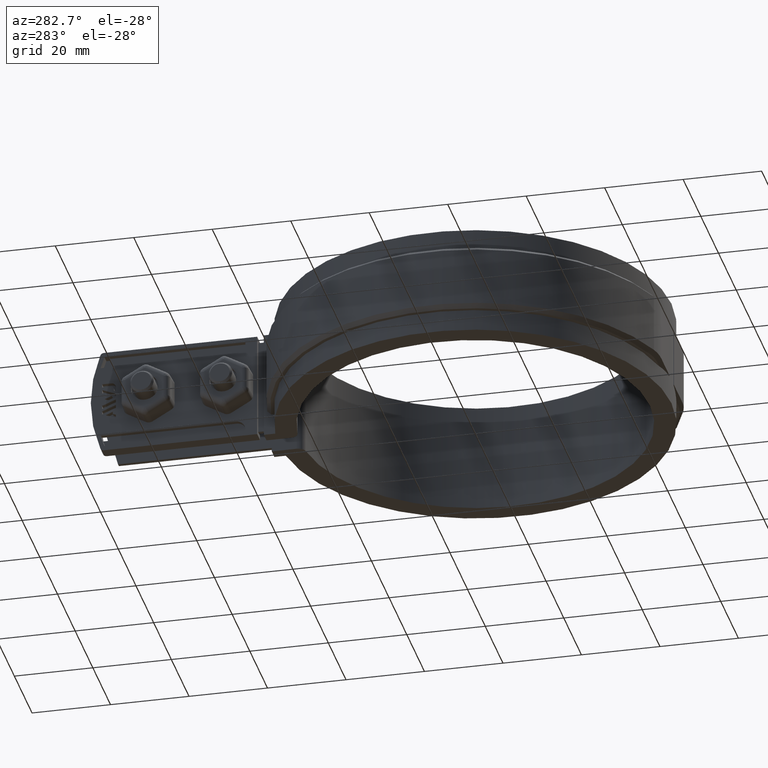
[diagram: clean part render]
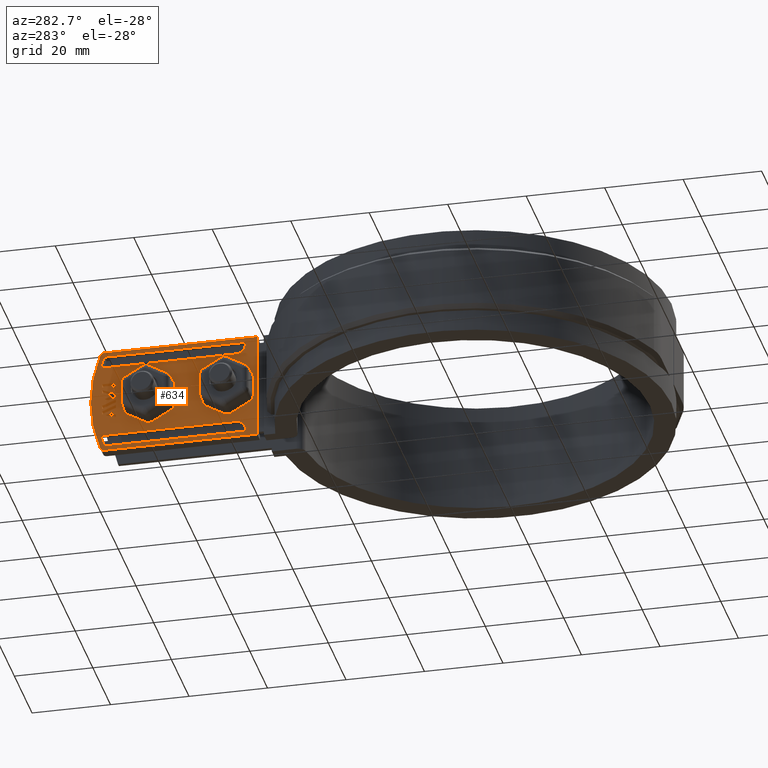
[diagram: same view with one face highlighted and labeled with its STEP entity id]
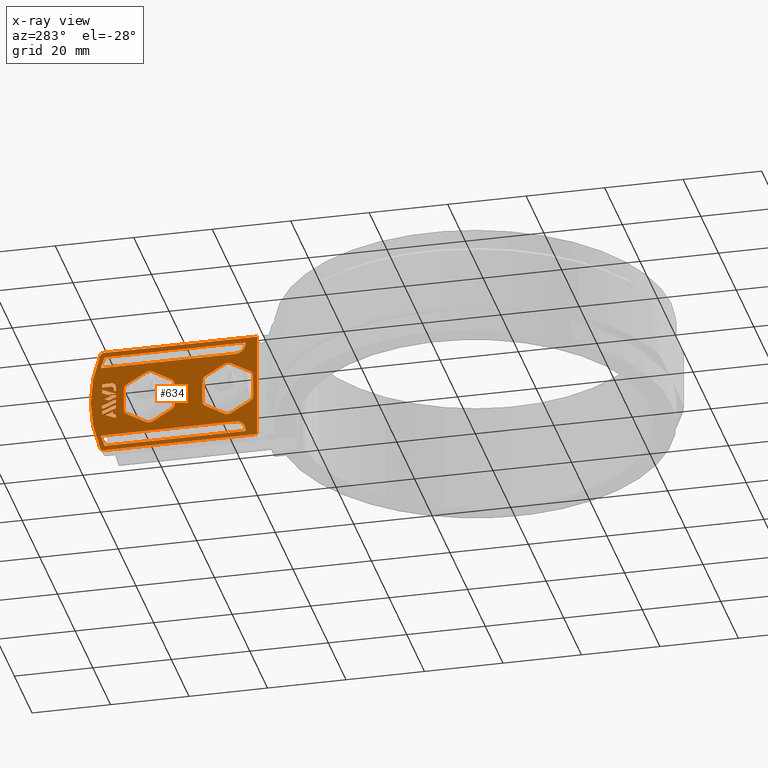
[diagram: x-ray of the same camera — body ghosted, the highlighted face saturated]
A machine part, auxiliary view. The second image highlights one B-rep face of the part: STEP entity #634.
The next image is the same camera in x-ray: the body ghosted, the highlighted face saturated — about 0% of this face is hidden behind the body in this view.
In plain terms, the highlighted planar face has unit normal (-1, 0, -0).
Its self-contained STEP definition (entity closure, byte-faithful):
#634 = ADVANCED_FACE( '', ( #1206, #1207, #1208, #1209, #1210, #1211, #1212, #1213, #1214, #1215 ), #1216, .T. );
#1206 = FACE_BOUND( '', #2577, .T. );
#1207 = FACE_BOUND( '', #2578, .T. );
#1208 = FACE_BOUND( '', #2579, .T. );
#1209 = FACE_BOUND( '', #2580, .T. );
#1210 = FACE_BOUND( '', #2581, .T. );
#1211 = FACE_OUTER_BOUND( '', #2582, .T. );
#1212 = FACE_BOUND( '', #2583, .T. );
#1213 = FACE_BOUND( '', #2584, .T. );
#1214 = FACE_BOUND( '', #2585, .T. );
#1215 = FACE_BOUND( '', #2586, .T. );
#1216 = PLANE( '', #2587 );
#2577 = EDGE_LOOP( '', ( #5952, #5953, #5954, #5955, #5956 ) );
#2578 = EDGE_LOOP( '', ( #5957, #5958, #5959, #5960 ) );
#2579 = EDGE_LOOP( '', ( #5961, #5962, #5963, #5964, #5965 ) );
#2580 = EDGE_LOOP( '', ( #5966, #5967, #5968, #5969, #5970, #5971, #5972, #5973, #5974, #5975, #5976, #5977 ) );
#2581 = EDGE_LOOP( '', ( #5978, #5979, #5980, #5981, #5982, #5983, #5984, #5985, #5986, #5987, #5988, #5989 ) );
#2582 = EDGE_LOOP( '', ( #5990, #5991, #5992, #5993, #5994, #5995 ) );
#2583 = EDGE_LOOP( '', ( #5996, #5997, #5998, #5999, #6000 ) );
#2584 = EDGE_LOOP( '', ( #6001, #6002, #6003, #6004, #6005, #6006, #6007, #6008, #6009, #6010, #6011, #6012, #6013, #6014, #6015, #6016, #6017, #6018, #6019, #6020, #6021, #6022, #6023, #6024, #6025, #6026, #6027, #6028, #6029, #6030, #6031, #6032, #6033, #6034, #6035, #6036, #6037, #6038, #6039, #6040 ) );
#2585 = EDGE_LOOP( '', ( #6041, #6042, #6043, #6044, #6045, #6046, #6047 ) );
#2586 = EDGE_LOOP( '', ( #6048, #6049, #6050, #6051 ) );
#2587 = AXIS2_PLACEMENT_3D( '', #6052, #6053, #6054 );
#5952 = ORIENTED_EDGE( '', *, *, #8037, .T. );
#5953 = ORIENTED_EDGE( '', *, *, #8038, .T. );
#5954 = ORIENTED_EDGE( '', *, *, #8039, .T. );
#5955 = ORIENTED_EDGE( '', *, *, #8040, .T. );
#5956 = ORIENTED_EDGE( '', *, *, #8041, .T. );
#5957 = ORIENTED_EDGE( '', *, *, #8042, .T. );
#5958 = ORIENTED_EDGE( '', *, *, #8043, .T. );
#5959 = ORIENTED_EDGE( '', *, *, #8044, .T. );
#5960 = ORIENTED_EDGE( '', *, *, #8045, .T. );
#5961 = ORIENTED_EDGE( '', *, *, #8046, .T. );
#5962 = ORIENTED_EDGE( '', *, *, #8047, .F. );
#5963 = ORIENTED_EDGE( '', *, *, #8048, .T. );
#5964 = ORIENTED_EDGE( '', *, *, #8049, .T. );
#5965 = ORIENTED_EDGE( '', *, *, #8050, .T. );
#5966 = ORIENTED_EDGE( '', *, *, #8051, .F. );
#5967 = ORIENTED_EDGE( '', *, *, #8052, .F. );
#5968 = ORIENTED_EDGE( '', *, *, #8053, .F. );
#5969 = ORIENTED_EDGE( '', *, *, #8054, .F. );
#5970 = ORIENTED_EDGE( '', *, *, #8055, .F. );
#5971 = ORIENTED_EDGE( '', *, *, #8056, .F. );
#5972 = ORIENTED_EDGE( '', *, *, #8057, .F. );
#5973 = ORIENTED_EDGE( '', *, *, #8058, .F. );
#5974 = ORIENTED_EDGE( '', *, *, #8059, .F. );
#5975 = ORIENTED_EDGE( '', *, *, #8060, .F. );
#5976 = ORIENTED_EDGE( '', *, *, #8061, .F. );
#5977 = ORIENTED_EDGE( '', *, *, #8062, .F. );
#5978 = ORIENTED_EDGE( '', *, *, #8063, .F. );
#5979 = ORIENTED_EDGE( '', *, *, #8064, .F. );
#5980 = ORIENTED_EDGE( '', *, *, #8065, .F. );
#5981 = ORIENTED_EDGE( '', *, *, #8066, .F. );
#5982 = ORIENTED_EDGE( '', *, *, #8067, .F. );
#5983 = ORIENTED_EDGE( '', *, *, #8068, .F. );
#5984 = ORIENTED_EDGE( '', *, *, #8069, .F. );
#5985 = ORIENTED_EDGE( '', *, *, #8070, .F. );
#5986 = ORIENTED_EDGE( '', *, *, #8071, .F. );
#5987 = ORIENTED_EDGE( '', *, *, #8072, .F. );
#5988 = ORIENTED_EDGE( '', *, *, #8073, .F. );
#5989 = ORIENTED_EDGE( '', *, *, #8074, .F. );
#5990 = ORIENTED_EDGE( '', *, *, #8075, .T. );
#5991 = ORIENTED_EDGE( '', *, *, #8076, .T. );
#5992 = ORIENTED_EDGE( '', *, *, #8077, .T. );
#5993 = ORIENTED_EDGE( '', *, *, #8078, .T. );
#5994 = ORIENTED_EDGE( '', *, *, #8079, .T. );
#5995 = ORIENTED_EDGE( '', *, *, #8080, .T. );
#5996 = ORIENTED_EDGE( '', *, *, #8081, .T. );
#5997 = ORIENTED_EDGE( '', *, *, #8082, .T. );
#5998 = ORIENTED_EDGE( '', *, *, #8083, .T. );
#5999 = ORIENTED_EDGE( '', *, *, #8084, .T. );
#6000 = ORIENTED_EDGE( '', *, *, #8085, .F. );
#6001 = ORIENTED_EDGE( '', *, *, #8086, .T. );
#6002 = ORIENTED_EDGE( '', *, *, #8087, .T. );
#6003 = ORIENTED_EDGE( '', *, *, #8088, .T. );
#6004 = ORIENTED_EDGE( '', *, *, #8089, .T. );
#6005 = ORIENTED_EDGE( '', *, *, #8090, .T. );
#6006 = ORIENTED_EDGE( '', *, *, #8091, .T. );
#6007 = ORIENTED_EDGE( '', *, *, #8092, .T. );
#6008 = ORIENTED_EDGE( '', *, *, #8093, .T. );
#6009 = ORIENTED_EDGE( '', *, *, #8094, .T. );
#6010 = ORIENTED_EDGE( '', *, *, #8095, .T. );
#6011 = ORIENTED_EDGE( '', *, *, #8096, .T. );
#6012 = ORIENTED_EDGE( '', *, *, #8097, .T. );
#6013 = ORIENTED_EDGE( '', *, *, #8098, .T. );
#6014 = ORIENTED_EDGE( '', *, *, #8099, .T. );
#6015 = ORIENTED_EDGE( '', *, *, #8100, .T. );
#6016 = ORIENTED_EDGE( '', *, *, #8101, .T. );
#6017 = ORIENTED_EDGE( '', *, *, #8102, .T. );
#6018 = ORIENTED_EDGE( '', *, *, #8103, .T. );
#6019 = ORIENTED_EDGE( '', *, *, #8104, .T. );
#6020 = ORIENTED_EDGE( '', *, *, #8105, .T. );
#6021 = ORIENTED_EDGE( '', *, *, #8106, .T. );
#6022 = ORIENTED_EDGE( '', *, *, #8107, .T. );
#6023 = ORIENTED_EDGE( '', *, *, #8108, .T. );
#6024 = ORIENTED_EDGE( '', *, *, #8109, .T. );
#6025 = ORIENTED_EDGE( '', *, *, #8110, .T. );
#6026 = ORIENTED_EDGE( '', *, *, #8111, .T. );
#6027 = ORIENTED_EDGE( '', *, *, #8112, .T. );
#6028 = ORIENTED_EDGE( '', *, *, #8113, .T. );
#6029 = ORIENTED_EDGE( '', *, *, #8114, .T. );
#6030 = ORIENTED_EDGE( '', *, *, #8115, .T. );
#6031 = ORIENTED_EDGE( '', *, *, #8116, .T. );
#6032 = ORIENTED_EDGE( '', *, *, #8117, .T. );
#6033 = ORIENTED_EDGE( '', *, *, #8118, .T. );
#6034 = ORIENTED_EDGE( '', *, *, #8119, .T. );
#6035 = ORIENTED_EDGE( '', *, *, #8120, .T. );
#6036 = ORIENTED_EDGE( '', *, *, #8121, .T. );
#6037 = ORIENTED_EDGE( '', *, *, #8122, .T. );
#6038 = ORIENTED_EDGE( '', *, *, #8123, .T. );
#6039 = ORIENTED_EDGE( '', *, *, #8124, .T. );
#6040 = ORIENTED_EDGE( '', *, *, #8125, .T. );
#6041 = ORIENTED_EDGE( '', *, *, #8126, .T. );
#6042 = ORIENTED_EDGE( '', *, *, #8127, .T. );
#6043 = ORIENTED_EDGE( '', *, *, #8128, .T. );
#6044 = ORIENTED_EDGE( '', *, *, #8129, .T. );
#6045 = ORIENTED_EDGE( '', *, *, #8130, .T. );
#6046 = ORIENTED_EDGE( '', *, *, #8131, .T. );
#6047 = ORIENTED_EDGE( '', *, *, #8132, .T. );
#6048 = ORIENTED_EDGE( '', *, *, #8133, .T. );
#6049 = ORIENTED_EDGE( '', *, *, #8134, .T. );
#6050 = ORIENTED_EDGE( '', *, *, #8135, .T. );
#6051 = ORIENTED_EDGE( '', *, *, #8136, .T. );
#6052 = CARTESIAN_POINT( '', ( -6.20000000000003, 60.1961090692274, 1.28716481917479E-012 ) );
#6053 = DIRECTION( '', ( -1.00000000000000, 7.00331983426594E-017, -2.99848040556711E-018 ) );
#6054 = DIRECTION( '', ( 7.00331983426594E-017, 1.00000000000000, 1.27307474615306E-016 ) );
#8037 = EDGE_CURVE( '', #9373, #9374, #9375, .T. );
#8038 = EDGE_CURVE( '', #9374, #9376, #9377, .T. );
#8039 = EDGE_CURVE( '', #9376, #9378, #9379, .T. );
#8040 = EDGE_CURVE( '', #9378, #9380, #9381, .T. );
#8041 = EDGE_CURVE( '', #9380, #9373, #9382, .T. );
#8042 = EDGE_CURVE( '', #9383, #9384, #9385, .T. );
#8043 = EDGE_CURVE( '', #9384, #9386, #9387, .T. );
#8044 = EDGE_CURVE( '', #9386, #9388, #9389, .T. );
#8045 = EDGE_CURVE( '', #9388, #9383, #9390, .T. );
#8046 = EDGE_CURVE( '', #9391, #9392, #9393, .F. );
#8047 = EDGE_CURVE( '', #9394, #9392, #9395, .T. );
#8048 = EDGE_CURVE( '', #9394, #9396, #9397, .T. );
#8049 = EDGE_CURVE( '', #9396, #9398, #9399, .T. );
#8050 = EDGE_CURVE( '', #9398, #9391, #9400, .T. );
#8051 = EDGE_CURVE( '', #9401, #9402, #9403, .F. );
#8052 = EDGE_CURVE( '', #9404, #9401, #9405, .T. );
#8053 = EDGE_CURVE( '', #9406, #9404, #9407, .F. );
#8054 = EDGE_CURVE( '', #9408, #9406, #9409, .T. );
#8055 = EDGE_CURVE( '', #9410, #9408, #9411, .F. );
#8056 = EDGE_CURVE( '', #9412, #9410, #9413, .T. );
#8057 = EDGE_CURVE( '', #9414, #9412, #9415, .F. );
#8058 = EDGE_CURVE( '', #9416, #9414, #9417, .T. );
#8059 = EDGE_CURVE( '', #9418, #9416, #9419, .F. );
#8060 = EDGE_CURVE( '', #9420, #9418, #9421, .T. );
#8061 = EDGE_CURVE( '', #9422, #9420, #9423, .F. );
#8062 = EDGE_CURVE( '', #9402, #9422, #9424, .T. );
#8063 = EDGE_CURVE( '', #9425, #9426, #9427, .F. );
#8064 = EDGE_CURVE( '', #9428, #9425, #9429, .T. );
#8065 = EDGE_CURVE( '', #9430, #9428, #9431, .F. );
#8066 = EDGE_CURVE( '', #9432, #9430, #9433, .T. );
#8067 = EDGE_CURVE( '', #9434, #9432, #9435, .F. );
#8068 = EDGE_CURVE( '', #9436, #9434, #9437, .T. );
#8069 = EDGE_CURVE( '', #9438, #9436, #9439, .F. );
#8070 = EDGE_CURVE( '', #9440, #9438, #9441, .T. );
#8071 = EDGE_CURVE( '', #9442, #9440, #9443, .F. );
#8072 = EDGE_CURVE( '', #9444, #9442, #9445, .T. );
#8073 = EDGE_CURVE( '', #9446, #9444, #9447, .F. );
#8074 = EDGE_CURVE( '', #9426, #9446, #9448, .T. );
#8075 = EDGE_CURVE( '', #9449, #9450, #9451, .T. );
#8076 = EDGE_CURVE( '', #9450, #9452, #9453, .T. );
#8077 = EDGE_CURVE( '', #9452, #9454, #9455, .T. );
#8078 = EDGE_CURVE( '', #9454, #9456, #9457, .T. );
#8079 = EDGE_CURVE( '', #9456, #9458, #9459, .T. );
#8080 = EDGE_CURVE( '', #9458, #9449, #9460, .T. );
#8081 = EDGE_CURVE( '', #9461, #9462, #9463, .F. );
#8082 = EDGE_CURVE( '', #9462, #9464, #9465, .T. );
#8083 = EDGE_CURVE( '', #9464, #9466, #9467, .T. );
#8084 = EDGE_CURVE( '', #9466, #9468, #9469, .T. );
#8085 = EDGE_CURVE( '', #9461, #9468, #9470, .T. );
#8086 = EDGE_CURVE( '', #9471, #9472, #9473, .T. );
#8087 = EDGE_CURVE( '', #9472, #9474, #9475, .T. );
#8088 = EDGE_CURVE( '', #9474, #9476, #9477, .T. );
#8089 = EDGE_CURVE( '', #9476, #9478, #9479, .T. );
#8090 = EDGE_CURVE( '', #9478, #9480, #9481, .T. );
#8091 = EDGE_CURVE( '', #9480, #9482, #9483, .T. );
#8092 = EDGE_CURVE( '', #9482, #9484, #9485, .T. );
#8093 = EDGE_CURVE( '', #9484, #9486, #9487, .T. );
#8094 = EDGE_CURVE( '', #9486, #9488, #9489, .T. );
#8095 = EDGE_CURVE( '', #9488, #9490, #9491, .T. );
#8096 = EDGE_CURVE( '', #9490, #9492, #9493, .T. );
#8097 = EDGE_CURVE( '', #9492, #9494, #9495, .T. );
#8098 = EDGE_CURVE( '', #9494, #9496, #9497, .T. );
#8099 = EDGE_CURVE( '', #9496, #9498, #9499, .T. );
#8100 = EDGE_CURVE( '', #9498, #9500, #9501, .T. );
#8101 = EDGE_CURVE( '', #9500, #9502, #9503, .T. );
#8102 = EDGE_CURVE( '', #9502, #9504, #9505, .T. );
#8103 = EDGE_CURVE( '', #9504, #9506, #9507, .T. );
#8104 = EDGE_CURVE( '', #9506, #9508, #9509, .T. );
#8105 = EDGE_CURVE( '', #9508, #9510, #9511, .T. );
#8106 = EDGE_CURVE( '', #9510, #9512, #9513, .T. );
#8107 = EDGE_CURVE( '', #9512, #9514, #9515, .T. );
#8108 = EDGE_CURVE( '', #9514, #9516, #9517, .T. );
#8109 = EDGE_CURVE( '', #9516, #9518, #9519, .T. );
#8110 = EDGE_CURVE( '', #9518, #9520, #9521, .T. );
#8111 = EDGE_CURVE( '', #9520, #9522, #9523, .T. );
#8112 = EDGE_CURVE( '', #9522, #9524, #9525, .T. );
#8113 = EDGE_CURVE( '', #9524, #9526, #9527, .T. );
#8114 = EDGE_CURVE( '', #9526, #9528, #9529, .T. );
#8115 = EDGE_CURVE( '', #9528, #9530, #9531, .T. );
#8116 = EDGE_CURVE( '', #9530, #9532, #9533, .T. );
#8117 = EDGE_CURVE( '', #9532, #9534, #9535, .T. );
#8118 = EDGE_CURVE( '', #9534, #9536, #9537, .T. );
#8119 = EDGE_CURVE( '', #9536, #9538, #9539, .T. );
#8120 = EDGE_CURVE( '', #9538, #9540, #9541, .T. );
#8121 = EDGE_CURVE( '', #9540, #9542, #9543, .T. );
#8122 = EDGE_CURVE( '', #9542, #9544, #9545, .T. );
#8123 = EDGE_CURVE( '', #9544, #9546, #9547, .T. );
#8124 = EDGE_CURVE( '', #9546, #9548, #9549, .T. );
#8125 = EDGE_CURVE( '', #9548, #9471, #9550, .F. );
#8126 = EDGE_CURVE( '', #9551, #9552, #9553, .T. );
#8127 = EDGE_CURVE( '', #9552, #9554, #9555, .T. );
#8128 = EDGE_CURVE( '', #9554, #9556, #9557, .T. );
#8129 = EDGE_CURVE( '', #9556, #9558, #9559, .T. );
#8130 = EDGE_CURVE( '', #9558, #9560, #9561, .T. );
#8131 = EDGE_CURVE( '', #9560, #9562, #9563, .T. );
#8132 = EDGE_CURVE( '', #9562, #9551, #9564, .T. );
#8133 = EDGE_CURVE( '', #9565, #9566, #9567, .T. );
#8134 = EDGE_CURVE( '', #9566, #9568, #9569, .T. );
#8135 = EDGE_CURVE( '', #9568, #9570, #9571, .T. );
#8136 = EDGE_CURVE( '', #9570, #9565, #9572, .T. );
#9373 = VERTEX_POINT( '', #13320 );
#9374 = VERTEX_POINT( '', #13321 );
#9375 = LINE( '', #13322, #13323 );
#9376 = VERTEX_POINT( '', #13324 );
#9377 = LINE( '', #13325, #13326 );
#9378 = VERTEX_POINT( '', #13327 );
#9379 = LINE( '', #13328, #13329 );
#9380 = VERTEX_POINT( '', #13330 );
#9381 = LINE( '', #13331, #13332 );
#9382 = LINE( '', #13333, #13334 );
#9383 = VERTEX_POINT( '', #13335 );
#9384 = VERTEX_POINT( '', #13336 );
#9385 = LINE( '', #13337, #13338 );
#9386 = VERTEX_POINT( '', #13339 );
#9387 = LINE( '', #13340, #13341 );
#9388 = VERTEX_POINT( '', #13342 );
#9389 = LINE( '', #13343, #13344 );
#9390 = LINE( '', #13345, #13346 );
#9391 = VERTEX_POINT( '', #13347 );
#9392 = VERTEX_POINT( '', #13348 );
#9393 = CIRCLE( '', #13349, 35.2000000000000 );
#9394 = VERTEX_POINT( '', #13350 );
#9395 = LINE( '', #13351, #13352 );
#9396 = VERTEX_POINT( '', #13353 );
#9397 = LINE( '', #13354, #13355 );
#9398 = VERTEX_POINT( '', #13356 );
#9399 = CIRCLE( '', #13357, 2.50000000000000 );
#9400 = LINE( '', #13358, #13359 );
#9401 = VERTEX_POINT( '', #13360 );
#9402 = VERTEX_POINT( '', #13361 );
#9403 = LINE( '', #13362, #13363 );
#9404 = VERTEX_POINT( '', #13364 );
#9405 = CIRCLE( '', #13365, 1.77252045227181 );
#9406 = VERTEX_POINT( '', #13366 );
#9407 = LINE( '', #13367, #13368 );
#9408 = VERTEX_POINT( '', #13369 );
#9409 = CIRCLE( '', #13370, 1.77252045227181 );
#9410 = VERTEX_POINT( '', #13371 );
#9411 = LINE( '', #13372, #13373 );
#9412 = VERTEX_POINT( '', #13374 );
#9413 = CIRCLE( '', #13375, 1.77252045227182 );
#9414 = VERTEX_POINT( '', #13376 );
#9415 = LINE( '', #13377, #13378 );
#9416 = VERTEX_POINT( '', #13379 );
#9417 = CIRCLE( '', #13380, 1.77252045227182 );
#9418 = VERTEX_POINT( '', #13381 );
#9419 = LINE( '', #13382, #13383 );
#9420 = VERTEX_POINT( '', #13384 );
#9421 = CIRCLE( '', #13385, 1.77252045227181 );
#9422 = VERTEX_POINT( '', #13386 );
#9423 = LINE( '', #13387, #13388 );
#9424 = CIRCLE( '', #13389, 1.77252045227182 );
#9425 = VERTEX_POINT( '', #13390 );
#9426 = VERTEX_POINT( '', #13391 );
#9427 = LINE( '', #13392, #13393 );
#9428 = VERTEX_POINT( '', #13394 );
#9429 = CIRCLE( '', #13395, 1.77252045227181 );
#9430 = VERTEX_POINT( '', #13396 );
#9431 = LINE( '', #13397, #13398 );
#9432 = VERTEX_POINT( '', #13399 );
#9433 = CIRCLE( '', #13400, 1.77252045227181 );
#9434 = VERTEX_POINT( '', #13401 );
#9435 = LINE( '', #13402, #13403 );
#9436 = VERTEX_POINT( '', #13404 );
#9437 = CIRCLE( '', #13405, 1.77252045227181 );
#9438 = VERTEX_POINT( '', #13406 );
#9439 = LINE( '', #13407, #13408 );
#9440 = VERTEX_POINT( '', #13409 );
#9441 = CIRCLE( '', #13410, 1.77252045227182 );
#9442 = VERTEX_POINT( '', #13411 );
#9443 = LINE( '', #13412, #13413 );
#9444 = VERTEX_POINT( '', #13414 );
#9445 = CIRCLE( '', #13415, 1.77252045227181 );
#9446 = VERTEX_POINT( '', #13416 );
#9447 = LINE( '', #13417, #13418 );
#9448 = CIRCLE( '', #13419, 1.77252045227182 );
#9449 = VERTEX_POINT( '', #13420 );
#9450 = VERTEX_POINT( '', #13421 );
#9451 = CIRCLE( '', #13422, 36.4000000000000 );
#9452 = VERTEX_POINT( '', #13423 );
#9453 = CIRCLE( '', #13424, 1.00000000000000 );
#9454 = VERTEX_POINT( '', #13425 );
#9455 = LINE( '', #13426, #13427 );
#9456 = VERTEX_POINT( '', #13428 );
#9457 = LINE( '', #13429, #13430 );
#9458 = VERTEX_POINT( '', #13431 );
#9459 = LINE( '', #13432, #13433 );
#9460 = CIRCLE( '', #13434, 1.00000000000000 );
#9461 = VERTEX_POINT( '', #13435 );
#9462 = VERTEX_POINT( '', #13436 );
#9463 = CIRCLE( '', #13437, 35.2000000000000 );
#9464 = VERTEX_POINT( '', #13438 );
#9465 = LINE( '', #13439, #13440 );
#9466 = VERTEX_POINT( '', #13441 );
#9467 = CIRCLE( '', #13442, 2.50000000000000 );
#9468 = VERTEX_POINT( '', #13443 );
#9469 = LINE( '', #13444, #13445 );
#9470 = LINE( '', #13446, #13447 );
#9471 = VERTEX_POINT( '', #13448 );
#9472 = VERTEX_POINT( '', #13449 );
#9473 = LINE( '', #13450, #13451 );
#9474 = VERTEX_POINT( '', #13452 );
#9475 = LINE( '', #13453, #13454 );
#9476 = VERTEX_POINT( '', #13455 );
#9477 = LINE( '', #13456, #13457 );
#9478 = VERTEX_POINT( '', #13458 );
#9479 = LINE( '', #13459, #13460 );
#9480 = VERTEX_POINT( '', #13461 );
#9481 = LINE( '', #13462, #13463 );
#9482 = VERTEX_POINT( '', #13464 );
#9483 = LINE( '', #13465, #13466 );
#9484 = VERTEX_POINT( '', #13467 );
#9485 = LINE( '', #13468, #13469 );
#9486 = VERTEX_POINT( '', #13470 );
#9487 = LINE( '', #13471, #13472 );
#9488 = VERTEX_POINT( '', #13473 );
#9489 = LINE( '', #13474, #13475 );
#9490 = VERTEX_POINT( '', #13476 );
#9491 = LINE( '', #13477, #13478 );
#9492 = VERTEX_POINT( '', #13479 );
#9493 = LINE( '', #13480, #13481 );
#9494 = VERTEX_POINT( '', #13482 );
#9495 = LINE( '', #13483, #13484 );
#9496 = VERTEX_POINT( '', #13485 );
#9497 = LINE( '', #13486, #13487 );
#9498 = VERTEX_POINT( '', #13488 );
#9499 = LINE( '', #13489, #13490 );
#9500 = VERTEX_POINT( '', #13491 );
#9501 = LINE( '', #13492, #13493 );
#9502 = VERTEX_POINT( '', #13494 );
#9503 = LINE( '', #13495, #13496 );
#9504 = VERTEX_POINT( '', #13497 );
#9505 = LINE( '', #13498, #13499 );
#9506 = VERTEX_POINT( '', #13500 );
#9507 = LINE( '', #13501, #13502 );
#9508 = VERTEX_POINT( '', #13503 );
#9509 = LINE( '', #13504, #13505 );
#9510 = VERTEX_POINT( '', #13506 );
#9511 = LINE( '', #13507, #13508 );
#9512 = VERTEX_POINT( '', #13509 );
#9513 = LINE( '', #13510, #13511 );
#9514 = VERTEX_POINT( '', #13512 );
#9515 = LINE( '', #13513, #13514 );
#9516 = VERTEX_POINT( '', #13515 );
#9517 = LINE( '', #13516, #13517 );
#9518 = VERTEX_POINT( '', #13518 );
#9519 = LINE( '', #13519, #13520 );
#9520 = VERTEX_POINT( '', #13521 );
#9521 = LINE( '', #13522, #13523 );
#9522 = VERTEX_POINT( '', #13524 );
#9523 = LINE( '', #13525, #13526 );
#9524 = VERTEX_POINT( '', #13527 );
#9525 = LINE( '', #13528, #13529 );
#9526 = VERTEX_POINT( '', #13530 );
#9527 = LINE( '', #13531, #13532 );
#9528 = VERTEX_POINT( '', #13533 );
#9529 = LINE( '', #13534, #13535 );
#9530 = VERTEX_POINT( '', #13536 );
#9531 = LINE( '', #13537, #13538 );
#9532 = VERTEX_POINT( '', #13539 );
#9533 = LINE( '', #13540, #13541 );
#9534 = VERTEX_POINT( '', #13542 );
#9535 = LINE( '', #13543, #13544 );
#9536 = VERTEX_POINT( '', #13545 );
#9537 = LINE( '', #13546, #13547 );
#9538 = VERTEX_POINT( '', #13548 );
#9539 = LINE( '', #13549, #13550 );
#9540 = VERTEX_POINT( '', #13551 );
#9541 = LINE( '', #13552, #13553 );
#9542 = VERTEX_POINT( '', #13554 );
#9543 = LINE( '', #13555, #13556 );
#9544 = VERTEX_POINT( '', #13557 );
#9545 = LINE( '', #13558, #13559 );
#9546 = VERTEX_POINT( '', #13560 );
#9547 = LINE( '', #13561, #13562 );
#9548 = VERTEX_POINT( '', #13563 );
#9549 = LINE( '', #13564, #13565 );
#9550 = CIRCLE( '', #13566, 1.16712912069193 );
#9551 = VERTEX_POINT( '', #13567 );
#9552 = VERTEX_POINT( '', #13568 );
#9553 = LINE( '', #13569, #13570 );
#9554 = VERTEX_POINT( '', #13571 );
#9555 = LINE( '', #13572, #13573 );
#9556 = VERTEX_POINT( '', #13574 );
#9557 = LINE( '', #13575, #13576 );
#9558 = VERTEX_POINT( '', #13577 );
#9559 = LINE( '', #13578, #13579 );
#9560 = VERTEX_POINT( '', #13580 );
#9561 = LINE( '', #13581, #13582 );
#9562 = VERTEX_POINT( '', #13583 );
#9563 = LINE( '', #13584, #13585 );
#9564 = LINE( '', #13586, #13587 );
#9565 = VERTEX_POINT( '', #13588 );
#9566 = VERTEX_POINT( '', #13589 );
#9567 = LINE( '', #13590, #13591 );
#9568 = VERTEX_POINT( '', #13592 );
#9569 = LINE( '', #13593, #13594 );
#9570 = VERTEX_POINT( '', #13595 );
#9571 = LINE( '', #13596, #13597 );
#9572 = LINE( '', #13598, #13599 );
#13320 = CARTESIAN_POINT( '', ( -6.20000000000002, 91.0078070860021, -3.14273099999871 ) );
#13321 = CARTESIAN_POINT( '', ( -6.20000000000002, 91.0078070860021, -3.70490135199871 ) );
#13322 = CARTESIAN_POINT( '', ( -6.20000000000002, 91.0078070860021, 1.28889954265077E-012 ) );
#13323 = VECTOR( '', #15212, 1000.00000000000 );
#13324 = CARTESIAN_POINT( '', ( -6.20000000000002, 90.1998011820021, -4.03159444399871 ) );
#13325 = CARTESIAN_POINT( '', ( -6.20000000000002, 65.8128209538563, -13.8917426630093 ) );
#13326 = VECTOR( '', #15213, 1000.00000000000 );
#13327 = CARTESIAN_POINT( '', ( -6.20000000000002, 90.1998011820021, -4.93535191999870 ) );
#13328 = CARTESIAN_POINT( '', ( -6.20000000000002, 90.1998011820021, 1.28889954265077E-012 ) );
#13329 = VECTOR( '', #15214, 1000.00000000000 );
#13330 = CARTESIAN_POINT( '', ( -6.20000000000002, 92.8228382960021, -3.87571280799870 ) );
#13331 = CARTESIAN_POINT( '', ( -6.20000000000002, 66.1196293399972, -14.6631181690085 ) );
#13332 = VECTOR( '', #15215, 1000.00000000000 );
#13333 = CARTESIAN_POINT( '', ( -6.20000000000003, 63.4252877267020, 7.99618760249427 ) );
#13334 = VECTOR( '', #15216, 1000.00000000000 );
#13335 = CARTESIAN_POINT( '', ( -6.20000000000002, 93.6982400060021, -2.04496288599870 ) );
#13336 = CARTESIAN_POINT( '', ( -6.20000000000002, 93.6982400060021, -1.14094322399872 ) );
#13337 = CARTESIAN_POINT( '', ( -6.20000000000002, 93.6982400060021, 1.28889954265077E-012 ) );
#13338 = VECTOR( '', #15217, 1000.00000000000 );
#13339 = CARTESIAN_POINT( '', ( -6.20000000000002, 90.1998011820021, 0.272669550001289 ) );
#13340 = CARTESIAN_POINT( '', ( -6.20000000000003, 64.5020207484355, 10.6563613942401 ) );
#13341 = VECTOR( '', #15218, 1000.00000000000 );
#13342 = CARTESIAN_POINT( '', ( -6.20000000000002, 90.1998011820021, -0.631350889998706 ) );
#13343 = CARTESIAN_POINT( '', ( -6.20000000000002, 90.1998011820021, 1.28889954265077E-012 ) );
#13344 = VECTOR( '', #15219, 1000.00000000000 );
#13345 = CARTESIAN_POINT( '', ( -6.20000000000003, 64.1879999212608, 9.87922143943519 ) );
#13346 = VECTOR( '', #15220, 1000.00000000000 );
#13347 = CARTESIAN_POINT( '', ( -6.20000000000002, 94.0899138128675, 9.50000000000129 ) );
#13348 = CARTESIAN_POINT( '', ( -6.20000000000003, 93.1018836384425, 12.5000000000013 ) );
#13349 = AXIS2_PLACEMENT_3D( '', #15221, #15222, #15223 );
#13350 = CARTESIAN_POINT( '', ( -6.20000000000003, 57.1961090692274, 12.5000000000013 ) );
#13351 = CARTESIAN_POINT( '', ( -6.20000000000003, 54.1961090692274, 12.5000000000013 ) );
#13352 = VECTOR( '', #15224, 1000.00000000000 );
#13353 = CARTESIAN_POINT( '', ( -6.20000000000003, 57.1961090692274, 12.0000000000013 ) );
#13354 = CARTESIAN_POINT( '', ( -6.20000000000003, 57.1961090692274, 13.7000000000013 ) );
#13355 = VECTOR( '', #15225, 1000.00000000000 );
#13356 = CARTESIAN_POINT( '', ( -6.20000000000003, 59.6961090692274, 9.50000000000129 ) );
#13357 = AXIS2_PLACEMENT_3D( '', #15226, #15227, #15228 );
#13358 = CARTESIAN_POINT( '', ( -6.20000000000003, 59.6961090692274, 9.50000000000129 ) );
#13359 = VECTOR( '', #15229, 1000.00000000000 );
#13360 = CARTESIAN_POINT( '', ( -6.20000000000003, 88.1686295214992, 2.71354626519254 ) );
#13361 = CARTESIAN_POINT( '', ( -6.20000000000003, 88.1686295214992, -2.71354626518995 ) );
#13362 = CARTESIAN_POINT( '', ( -6.20000000000003, 88.1686295214992, -2.71354626518995 ) );
#13363 = VECTOR( '', #15230, 1000.00000000000 );
#13364 = CARTESIAN_POINT( '', ( -6.20000000000003, 87.2823692953633, 4.24859400558741 ) );
#13365 = AXIS2_PLACEMENT_3D( '', #15231, #15232, #15233 );
#13366 = CARTESIAN_POINT( '', ( -6.20000000000003, 82.5823692953633, 6.96214027077864 ) );
#13367 = CARTESIAN_POINT( '', ( -6.20000000000003, 89.6323692953632, 2.89182087299180 ) );
#13368 = VECTOR( '', #15234, 1000.00000000000 );
#13369 = CARTESIAN_POINT( '', ( -6.20000000000003, 80.8098488430914, 6.96214027077865 ) );
#13370 = AXIS2_PLACEMENT_3D( '', #15235, #15236, #15237 );
#13371 = CARTESIAN_POINT( '', ( -6.20000000000003, 76.1098488430914, 4.24859400558741 ) );
#13372 = CARTESIAN_POINT( '', ( -6.20000000000003, 80.8098488430914, 6.96214027077865 ) );
#13373 = VECTOR( '', #15238, 1000.00000000000 );
#13374 = CARTESIAN_POINT( '', ( -6.20000000000003, 75.2235886169555, 2.71354626519254 ) );
#13375 = AXIS2_PLACEMENT_3D( '', #15239, #15240, #15241 );
#13376 = CARTESIAN_POINT( '', ( -6.20000000000003, 75.2235886169555, -2.71354626518993 ) );
#13377 = CARTESIAN_POINT( '', ( -6.20000000000003, 75.2235886169555, -2.71354626518995 ) );
#13378 = VECTOR( '', #15242, 1000.00000000000 );
#13379 = CARTESIAN_POINT( '', ( -6.20000000000003, 76.1098488430914, -4.24859400558481 ) );
#13380 = AXIS2_PLACEMENT_3D( '', #15243, #15244, #15245 );
#13381 = CARTESIAN_POINT( '', ( -6.20000000000003, 80.8098488430914, -6.96214027077607 ) );
#13382 = CARTESIAN_POINT( '', ( -6.20000000000003, 83.1598488430915, -8.31891340337167 ) );
#13383 = VECTOR( '', #15246, 1000.00000000000 );
#13384 = CARTESIAN_POINT( '', ( -6.20000000000003, 82.5823692953633, -6.96214027077606 ) );
#13385 = AXIS2_PLACEMENT_3D( '', #15247, #15248, #15249 );
#13386 = CARTESIAN_POINT( '', ( -6.20000000000003, 87.2823692953633, -4.24859400558483 ) );
#13387 = CARTESIAN_POINT( '', ( -6.20000000000003, 87.2823692953633, -4.24859400558483 ) );
#13388 = VECTOR( '', #15250, 1000.00000000000 );
#13389 = AXIS2_PLACEMENT_3D( '', #15251, #15252, #15253 );
#13390 = CARTESIAN_POINT( '', ( -6.20000000000002, 68.1686295214992, 2.71354626519253 ) );
#13391 = CARTESIAN_POINT( '', ( -6.20000000000002, 68.1686295214992, -2.71354626518995 ) );
#13392 = CARTESIAN_POINT( '', ( -6.20000000000002, 68.1686295214992, -2.71354626518995 ) );
#13393 = VECTOR( '', #15254, 1000.00000000000 );
#13394 = CARTESIAN_POINT( '', ( -6.20000000000002, 67.2823692953633, 4.24859400558741 ) );
#13395 = AXIS2_PLACEMENT_3D( '', #15255, #15256, #15257 );
#13396 = CARTESIAN_POINT( '', ( -6.20000000000003, 62.5823692953633, 6.96214027077865 ) );
#13397 = CARTESIAN_POINT( '', ( -6.20000000000002, 69.6323692953633, 2.89182087299179 ) );
#13398 = VECTOR( '', #15258, 1000.00000000000 );
#13399 = CARTESIAN_POINT( '', ( -6.20000000000003, 60.8098488430914, 6.96214027077865 ) );
#13400 = AXIS2_PLACEMENT_3D( '', #15259, #15260, #15261 );
#13401 = CARTESIAN_POINT( '', ( -6.20000000000003, 56.1098488430914, 4.24859400558741 ) );
#13402 = CARTESIAN_POINT( '', ( -6.20000000000002, 60.8098488430915, 6.96214027077865 ) );
#13403 = VECTOR( '', #15262, 1000.00000000000 );
#13404 = CARTESIAN_POINT( '', ( -6.20000000000003, 55.2235886169555, 2.71354626519254 ) );
#13405 = AXIS2_PLACEMENT_3D( '', #15263, #15264, #15265 );
#13406 = CARTESIAN_POINT( '', ( -6.20000000000003, 55.2235886169555, -2.71354626518994 ) );
#13407 = CARTESIAN_POINT( '', ( -6.20000000000002, 55.2235886169555, -2.71354626518995 ) );
#13408 = VECTOR( '', #15266, 1000.00000000000 );
#13409 = CARTESIAN_POINT( '', ( -6.20000000000003, 56.1098488430914, -4.24859400558482 ) );
#13410 = AXIS2_PLACEMENT_3D( '', #15267, #15268, #15269 );
#13411 = CARTESIAN_POINT( '', ( -6.20000000000003, 60.8098488430915, -6.96214027077607 ) );
#13412 = CARTESIAN_POINT( '', ( -6.20000000000002, 63.1598488430914, -8.31891340337168 ) );
#13413 = VECTOR( '', #15270, 1000.00000000000 );
#13414 = CARTESIAN_POINT( '', ( -6.20000000000003, 62.5823692953633, -6.96214027077606 ) );
#13415 = AXIS2_PLACEMENT_3D( '', #15271, #15272, #15273 );
#13416 = CARTESIAN_POINT( '', ( -6.20000000000003, 67.2823692953633, -4.24859400558483 ) );
#13417 = CARTESIAN_POINT( '', ( -6.20000000000002, 67.2823692953633, -4.24859400558483 ) );
#13418 = VECTOR( '', #15274, 1000.00000000000 );
#13419 = AXIS2_PLACEMENT_3D( '', #15275, #15276, #15277 );
#13420 = CARTESIAN_POINT( '', ( -6.20000000000002, 94.1729962720279, 13.0587570621482 ) );
#13421 = CARTESIAN_POINT( '', ( -6.20000000000002, 94.1729962720279, -13.0587570621456 ) );
#13422 = AXIS2_PLACEMENT_3D( '', #15278, #15279, #15280 );
#13423 = CARTESIAN_POINT( '', ( -6.20000000000002, 93.2395653049180, -13.6999999999987 ) );
#13424 = AXIS2_PLACEMENT_3D( '', #15281, #15282, #15283 );
#13425 = CARTESIAN_POINT( '', ( -6.20000000000003, 54.1961090692274, -13.6999999999987 ) );
#13426 = CARTESIAN_POINT( '', ( -6.20000000000003, 57.1961090692274, -13.6999999999987 ) );
#13427 = VECTOR( '', #15284, 1000.00000000000 );
#13428 = CARTESIAN_POINT( '', ( -6.20000000000003, 54.1961090692274, 13.7000000000013 ) );
#13429 = CARTESIAN_POINT( '', ( -6.20000000000003, 54.1961090692274, -13.6999999999987 ) );
#13430 = VECTOR( '', #15285, 1000.00000000000 );
#13431 = CARTESIAN_POINT( '', ( -6.20000000000002, 93.2395653049180, 13.7000000000013 ) );
#13432 = CARTESIAN_POINT( '', ( -6.20000000000003, 54.1961090692274, 13.7000000000013 ) );
#13433 = VECTOR( '', #15286, 1000.00000000000 );
#13434 = AXIS2_PLACEMENT_3D( '', #15287, #15288, #15289 );
#13435 = CARTESIAN_POINT( '', ( -6.20000000000002, 93.1018836384424, -12.4999999999987 ) );
#13436 = CARTESIAN_POINT( '', ( -6.20000000000003, 94.0899138128675, -9.49999999999870 ) );
#13437 = AXIS2_PLACEMENT_3D( '', #15290, #15291, #15292 );
#13438 = CARTESIAN_POINT( '', ( -6.20000000000003, 59.6961090692274, -9.49999999999871 ) );
#13439 = CARTESIAN_POINT( '', ( -6.20000000000002, 94.9200201392667, -9.49999999999871 ) );
#13440 = VECTOR( '', #15293, 1000.00000000000 );
#13441 = CARTESIAN_POINT( '', ( -6.20000000000003, 57.1961090692274, -11.9999999999987 ) );
#13442 = AXIS2_PLACEMENT_3D( '', #15294, #15295, #15296 );
#13443 = CARTESIAN_POINT( '', ( -6.20000000000003, 57.1961090692274, -12.4999999999987 ) );
#13444 = CARTESIAN_POINT( '', ( -6.20000000000003, 57.1961090692274, -11.9999999999987 ) );
#13445 = VECTOR( '', #15297, 1000.00000000000 );
#13446 = CARTESIAN_POINT( '', ( -6.20000000000002, 92.8878511457825, -12.4999999999987 ) );
#13447 = VECTOR( '', #15298, 1000.00000000000 );
#13448 = CARTESIAN_POINT( '', ( -6.20000000000002, 90.1998011891407, 3.75702028825265 ) );
#13449 = CARTESIAN_POINT( '', ( -6.20000000000002, 90.1998011820021, 2.52926555200130 ) );
#13450 = CARTESIAN_POINT( '', ( -6.20000000000002, 90.1998011672961, -1.74450226833600E-007 ) );
#13451 = VECTOR( '', #15299, 1000.00000000000 );
#13452 = CARTESIAN_POINT( '', ( -6.20000000000002, 90.7085408280021, 2.73480926200129 ) );
#13453 = CARTESIAN_POINT( '', ( -6.20000000000003, 63.5280279987980, -8.24680675818406 ) );
#13454 = VECTOR( '', #15300, 1000.00000000000 );
#13455 = CARTESIAN_POINT( '', ( -6.20000000000002, 90.7085408280021, 3.23173575600129 ) );
#13456 = CARTESIAN_POINT( '', ( -6.20000000000002, 90.7085408280021, 1.28889954265077E-012 ) );
#13457 = VECTOR( '', #15301, 1000.00000000000 );
#13458 = CARTESIAN_POINT( '', ( -6.20000000000002, 90.7092379160021, 3.26452923400129 ) );
#13459 = CARTESIAN_POINT( '', ( -6.20000000000002, 90.6260941352225, -0.646847444166961 ) );
#13460 = VECTOR( '', #15302, 1000.00000000000 );
#13461 = CARTESIAN_POINT( '', ( -6.20000000000002, 90.7113214000021, 3.29730559600128 ) );
#13462 = CARTESIAN_POINT( '', ( -6.20000000000002, 90.3797589798131, -1.91867394100731 ) );
#13463 = VECTOR( '', #15303, 1000.00000000000 );
#13464 = CARTESIAN_POINT( '', ( -6.20000000000002, 90.7147803880021, 3.32997148200129 ) );
#13465 = CARTESIAN_POINT( '', ( -6.20000000000002, 90.0276782953226, -3.15886242834407 ) );
#13466 = VECTOR( '', #15304, 1000.00000000000 );
#13467 = CARTESIAN_POINT( '', ( -6.20000000000002, 90.7196032100021, 3.36243431000129 ) );
#13468 = CARTESIAN_POINT( '', ( -6.20000000000002, 89.5717046781658, -4.36416903560569 ) );
#13469 = VECTOR( '', #15305, 1000.00000000000 );
#13470 = CARTESIAN_POINT( '', ( -6.20000000000002, 90.7257781960021, 3.39459994200130 ) );
#13471 = CARTESIAN_POINT( '', ( -6.20000000000002, 89.0121085198282, -5.53194145799347 ) );
#13472 = VECTOR( '', #15306, 1000.00000000000 );
#13473 = CARTESIAN_POINT( '', ( -6.20000000000002, 90.7346800720021, 3.43162807400129 ) );
#13474 = CARTESIAN_POINT( '', ( -6.20000000000002, 88.2861871892742, -6.75309227738019 ) );
#13475 = VECTOR( '', #15307, 1000.00000000000 );
#13476 = CARTESIAN_POINT( '', ( -6.20000000000002, 90.7454226960021, 3.46824775600130 ) );
#13477 = CARTESIAN_POINT( '', ( -6.20000000000002, 87.3879150549894, -7.97689470886073 ) );
#13478 = VECTOR( '', #15308, 1000.00000000000 );
#13479 = CARTESIAN_POINT( '', ( -6.20000000000002, 90.7579492740021, 3.50433139600130 ) );
#13480 = CARTESIAN_POINT( '', ( -6.20000000000002, 86.3852052963614, -9.09164808868377 ) );
#13481 = VECTOR( '', #15309, 1000.00000000000 );
#13482 = CARTESIAN_POINT( '', ( -6.20000000000002, 90.7722022340021, 3.53975295800130 ) );
#13483 = CARTESIAN_POINT( '', ( -6.20000000000002, 85.2856206749555, -10.0955402626219 ) );
#13484 = VECTOR( '', #15310, 1000.00000000000 );
#13485 = CARTESIAN_POINT( '', ( -6.20000000000002, 90.7881240040021, 3.57438407200130 ) );
#13486 = CARTESIAN_POINT( '', ( -6.20000000000002, 84.0935188419189, -10.9869137330230 ) );
#13487 = VECTOR( '', #15311, 1000.00000000000 );
#13488 = CARTESIAN_POINT( '', ( -6.20000000000002, 90.8056570120021, 3.60809870200129 ) );
#13489 = CARTESIAN_POINT( '', ( -6.20000000000002, 82.8127728816589, -11.7616046077481 ) );
#13490 = VECTOR( '', #15312, 1000.00000000000 );
#13491 = CARTESIAN_POINT( '', ( -6.20000000000002, 90.8247429080021, 3.64076847800129 ) );
#13492 = CARTESIAN_POINT( '', ( -6.20000000000002, 81.4454429609078, -12.4139993101246 ) );
#13493 = VECTOR( '', #15313, 1000.00000000000 );
#13494 = CARTESIAN_POINT( '', ( -6.20000000000002, 90.8455116180021, 3.67257389600130 ) );
#13495 = CARTESIAN_POINT( '', ( -6.20000000000002, 80.0020858298975, -12.9331608724369 ) );
#13496 = VECTOR( '', #15314, 1000.00000000000 );
#13497 = CARTESIAN_POINT( '', ( -6.20000000000002, 90.8678620020021, 3.70337491600129 ) );
#13498 = CARTESIAN_POINT( '', ( -6.20000000000002, 78.5279295247148, -13.3022616328655 ) );
#13499 = VECTOR( '', #15315, 1000.00000000000 );
#13500 = CARTESIAN_POINT( '', ( -6.20000000000002, 90.8917053680021, 3.73307662200129 ) );
#13501 = CARTESIAN_POINT( '', ( -6.20000000000002, 77.0401911144311, -13.5217691919013 ) );
#13502 = VECTOR( '', #15316, 1000.00000000000 );
#13503 = CARTESIAN_POINT( '', ( -6.20000000000002, 90.9169530240021, 3.76158643200129 ) );
#13504 = CARTESIAN_POINT( '', ( -6.20000000000002, 75.5469261210591, -13.5943434292811 ) );
#13505 = VECTOR( '', #15317, 1000.00000000000 );
#13506 = CARTESIAN_POINT( '', ( -6.20000000000002, 90.9435170560021, 3.78880943000129 ) );
#13507 = CARTESIAN_POINT( '', ( -6.20000000000002, 74.0526189715245, -13.5210961134009 ) );
#13508 = VECTOR( '', #15318, 1000.00000000000 );
#13509 = CARTESIAN_POINT( '', ( -6.20000000000002, 90.9713072160021, 3.81465147800129 ) );
#13510 = CARTESIAN_POINT( '', ( -6.20000000000002, 72.5650174495859, -13.3013429475664 ) );
#13511 = VECTOR( '', #15319, 1000.00000000000 );
#13512 = CARTESIAN_POINT( '', ( -6.20000000000002, 91.0002363680021, 3.83901921600129 ) );
#13513 = CARTESIAN_POINT( '', ( -6.20000000000002, 71.0893780531878, -12.9323876600248 ) );
#13514 = VECTOR( '', #15320, 1000.00000000000 );
#13515 = CARTESIAN_POINT( '', ( -6.20000000000002, 91.0298937280021, 3.86160222200129 ) );
#13516 = CARTESIAN_POINT( '', ( -6.20000000000002, 69.6514437678919, -12.4173134913335 ) );
#13517 = VECTOR( '', #15321, 1000.00000000000 );
#13518 = CARTESIAN_POINT( '', ( -6.20000000000002, 91.0606939700021, 3.88278638400130 ) );
#13519 = CARTESIAN_POINT( '', ( -6.20000000000002, 68.2950348289318, -11.7752532924791 ) );
#13520 = VECTOR( '', #15322, 1000.00000000000 );
#13521 = CARTESIAN_POINT( '', ( -6.20000000000002, 91.0925312860021, 3.90250868400129 ) );
#13522 = CARTESIAN_POINT( '', ( -6.20000000000002, 67.0173406645529, -11.0113782778675 ) );
#13523 = VECTOR( '', #15323, 1000.00000000000 );
#13524 = CARTESIAN_POINT( '', ( -6.20000000000002, 91.1252983120021, 3.92070843800130 ) );
#13525 = CARTESIAN_POINT( '', ( -6.20000000000003, 65.8239368460215, -10.1323995415325 ) );
#13526 = VECTOR( '', #15324, 1000.00000000000 );
#13527 = CARTESIAN_POINT( '', ( -6.20000000000002, 91.1588892400021, 3.93732574000129 ) );
#13528 = CARTESIAN_POINT( '', ( -6.20000000000003, 64.7188486116197, -9.14245996921534 ) );
#13529 = VECTOR( '', #15325, 1000.00000000000 );
#13530 = CARTESIAN_POINT( '', ( -6.20000000000002, 91.1931982620021, 3.95229757200129 ) );
#13531 = CARTESIAN_POINT( '', ( -6.20000000000003, 63.7057980867879, -8.04270297159296 ) );
#13532 = VECTOR( '', #15326, 1000.00000000000 );
#13533 = CARTESIAN_POINT( '', ( -6.20000000000002, 91.2281187920021, 3.96556325000129 ) );
#13534 = CARTESIAN_POINT( '', ( -6.20000000000003, 62.7931250148999, -6.83637679440983 ) );
#13535 = VECTOR( '', #15327, 1000.00000000000 );
#13536 = CARTESIAN_POINT( '', ( -6.20000000000002, 91.2637037340021, 3.97712044000129 ) );
#13537 = CARTESIAN_POINT( '', ( -6.20000000000003, 61.9920200863457, -5.52966502941729 ) );
#13538 = VECTOR( '', #15328, 1000.00000000000 );
#13539 = CARTESIAN_POINT( '', ( -6.20000000000002, 91.2999460860021, 3.98697458800128 ) );
#13540 = CARTESIAN_POINT( '', ( -6.20000000000003, 61.3278275997031, -4.16232243989225 ) );
#13541 = VECTOR( '', #15329, 1000.00000000000 );
#13542 = CARTESIAN_POINT( '', ( -6.20000000000002, 91.3367182560021, 3.99509690800129 ) );
#13543 = CARTESIAN_POINT( '', ( -6.20000000000003, 60.8033544854422, -2.74918147484122 ) );
#13544 = VECTOR( '', #15330, 1000.00000000000 );
#13545 = CARTESIAN_POINT( '', ( -6.20000000000002, 91.3738918740021, 4.00146094800129 ) );
#13546 = CARTESIAN_POINT( '', ( -6.20000000000003, 60.4183342125802, -1.29806107268197 ) );
#13547 = VECTOR( '', #15331, 1000.00000000000 );
#13548 = CARTESIAN_POINT( '', ( -6.20000000000002, 91.4113385700021, 4.00604025600129 ) );
#13549 = CARTESIAN_POINT( '', ( -6.20000000000003, 60.1733647327399, 0.185988855559824 ) );
#13550 = VECTOR( '', #15332, 1000.00000000000 );
#13551 = CARTESIAN_POINT( '', ( -6.20000000000002, 91.4489307520021, 4.00880760200129 ) );
#13552 = CARTESIAN_POINT( '', ( -6.20000000000003, 60.0710427111728, 1.69892644218238 ) );
#13553 = VECTOR( '', #15333, 1000.00000000000 );
#13554 = CARTESIAN_POINT( '', ( -6.20000000000002, 91.4865408280021, 4.00973575600129 ) );
#13555 = CARTESIAN_POINT( '', ( -6.20000000000003, 60.1162606054842, 3.23556951742302 ) );
#13556 = VECTOR( '', #15334, 1000.00000000000 );
#13557 = CARTESIAN_POINT( '', ( -6.20000000000002, 93.6982400060021, 4.00973575600129 ) );
#13558 = CARTESIAN_POINT( '', ( -6.20000000000003, 60.1961090692274, 4.00973575600129 ) );
#13559 = VECTOR( '', #15335, 1000.00000000000 );
#13560 = CARTESIAN_POINT( '', ( -6.20000000000002, 93.6982400060021, 4.92402035000129 ) );
#13561 = CARTESIAN_POINT( '', ( -6.20000000000002, 93.6982400060021, 1.28889954265077E-012 ) );
#13562 = VECTOR( '', #15336, 1000.00000000000 );
#13563 = CARTESIAN_POINT( '', ( -6.20000000000002, 91.3668011820021, 4.92402035000129 ) );
#13564 = CARTESIAN_POINT( '', ( -6.20000000000003, 60.1961090692274, 4.92402035000129 ) );
#13565 = VECTOR( '', #15337, 1000.00000000000 );
#13566 = AXIS2_PLACEMENT_3D( '', #15338, #15339, #15340 );
#13567 = CARTESIAN_POINT( '', ( -6.20000000000002, 91.2549224480021, 1.40086757800129 ) );
#13568 = CARTESIAN_POINT( '', ( -6.20000000000002, 93.6982400060021, 2.38814802200129 ) );
#13569 = CARTESIAN_POINT( '', ( -6.20000000000003, 64.0688732524860, -9.58430077740706 ) );
#13570 = VECTOR( '', #15341, 1000.00000000000 );
#13571 = CARTESIAN_POINT( '', ( -6.20000000000002, 93.6982400060021, 3.29218013200129 ) );
#13572 = CARTESIAN_POINT( '', ( -6.20000000000002, 93.6982400060021, 1.28889954265077E-012 ) );
#13573 = VECTOR( '', #15342, 1000.00000000000 );
#13574 = CARTESIAN_POINT( '', ( -6.20000000000002, 90.1998011820021, 1.87878986600128 ) );
#13575 = CARTESIAN_POINT( '', ( -6.20000000000003, 63.7536326866519, -8.80562081109791 ) );
#13576 = VECTOR( '', #15343, 1000.00000000000 );
#13577 = CARTESIAN_POINT( '', ( -6.20000000000002, 90.1998011820021, 0.923144458001289 ) );
#13578 = CARTESIAN_POINT( '', ( -6.20000000000002, 90.1998011820021, 1.28889954265077E-012 ) );
#13579 = VECTOR( '', #15344, 1000.00000000000 );
#13580 = CARTESIAN_POINT( '', ( -6.20000000000002, 91.9821579480021, 0.202900066001292 ) );
#13581 = CARTESIAN_POINT( '', ( -6.20000000000003, 64.7284671999331, 11.2160251019341 ) );
#13582 = VECTOR( '', #15345, 1000.00000000000 );
#13583 = CARTESIAN_POINT( '', ( -6.20000000000002, 93.1011327860021, 0.654915732001292 ) );
#13584 = CARTESIAN_POINT( '', ( -6.20000000000003, 64.5848354782702, -10.8643898695858 ) );
#13585 = VECTOR( '', #15346, 1000.00000000000 );
#13586 = CARTESIAN_POINT( '', ( -6.20000000000003, 65.0415199201430, 11.9922588204424 ) );
#13587 = VECTOR( '', #15347, 1000.00000000000 );
#13588 = CARTESIAN_POINT( '', ( -6.20000000000002, 93.6982400060021, -2.69546191199871 ) );
#13589 = CARTESIAN_POINT( '', ( -6.20000000000002, 90.1998011820021, -1.28184913799871 ) );
#13590 = CARTESIAN_POINT( '', ( -6.20000000000003, 63.9620493459978, 9.32002873448898 ) );
#13591 = VECTOR( '', #15348, 1000.00000000000 );
#13592 = CARTESIAN_POINT( '', ( -6.20000000000002, 90.1998011820021, -2.18580500399871 ) );
#13593 = CARTESIAN_POINT( '', ( -6.20000000000002, 90.1998011820021, 1.28889954265077E-012 ) );
#13594 = VECTOR( '', #15349, 1000.00000000000 );
#13595 = CARTESIAN_POINT( '', ( -6.20000000000002, 93.6982400060021, -3.59921860999870 ) );
#13596 = CARTESIAN_POINT( '', ( -6.20000000000003, 63.6471117266411, 8.54181792730331 ) );
#13597 = VECTOR( '', #15350, 1000.00000000000 );
#13598 = CARTESIAN_POINT( '', ( -6.20000000000002, 93.6982400060021, 1.28889954265077E-012 ) );
#13599 = VECTOR( '', #15351, 1000.00000000000 );
#15212 = DIRECTION( '', ( 2.99848040556711E-018, 6.12303185182995E-017, -1.00000000000000 ) );
#15213 = DIRECTION( '', ( -6.38030667817910E-017, -0.927089170438196, -0.374840859640753 ) );
#15214 = DIRECTION( '', ( 2.99848040556711E-018, 6.12303185182995E-017, -1.00000000000000 ) );
#15215 = DIRECTION( '', ( 6.38116998903885E-017, 0.927200633736574, 0.374565060835223 ) );
#15216 = DIRECTION( '', ( -6.60606600455966E-017, -0.927243888575590, 0.374457969736549 ) );
#15217 = DIRECTION( '', ( -2.99848040556711E-018, -6.12303185182995E-017, 1.00000000000000 ) );
#15218 = DIRECTION( '', ( -6.60560267289571E-017, -0.927169886208874, 0.374641164459304 ) );
#15219 = DIRECTION( '', ( 2.99848040556711E-018, 6.12303185182995E-017, -1.00000000000000 ) );
#15220 = DIRECTION( '', ( 6.60560312133162E-017, 0.927169957829709, -0.374640987210496 ) );
#15221 = CARTESIAN_POINT( '', ( -6.20000000000003, 60.1961090692274, 1.28716481917479E-012 ) );
#15222 = DIRECTION( '', ( -1.00000000000000, 7.00331983426594E-017, -2.99848040556711E-018 ) );
#15223 = DIRECTION( '', ( -7.00331983426594E-017, -1.00000000000000, 0.000000000000000 ) );
#15224 = DIRECTION( '', ( 5.56970201441962E-017, 1.00000000000000, 5.55111512312578E-017 ) );
#15225 = DIRECTION( '', ( -4.24382911911540E-034, -1.16698518397363E-016, -1.00000000000000 ) );
#15226 = CARTESIAN_POINT( '', ( -6.20000000000003, 59.6961090692274, 12.0000000000013 ) );
#15227 = DIRECTION( '', ( 1.00000000000000, -4.59398167318704E-017, 2.99848040556711E-018 ) );
#15228 = DIRECTION( '', ( -4.59398167318704E-017, -1.00000000000000, 1.26047130616614E-015 ) );
#15229 = DIRECTION( '', ( 5.56970201441962E-017, 1.00000000000000, 1.27307474615306E-016 ) );
#15230 = DIRECTION( '', ( -1.97308976443281E-032, -5.55111512312578E-016, 1.00000000000000 ) );
#15231 = CARTESIAN_POINT( '', ( -6.20000000000003, 86.3961090692274, 2.71354626519254 ) );
#15232 = DIRECTION( '', ( -1.00000000000000, 3.55440253114725E-017, 0.000000000000000 ) );
#15233 = DIRECTION( '', ( -3.55440253114725E-017, -1.00000000000000, 0.000000000000000 ) );
#15234 = DIRECTION( '', ( -3.07820288724923E-017, -0.866025403784439, 0.499999999999999 ) );
#15235 = CARTESIAN_POINT( '', ( -6.20000000000003, 81.6961090692273, 5.42709253038378 ) );
#15236 = DIRECTION( '', ( -1.00000000000000, 3.55440253114725E-017, 0.000000000000000 ) );
#15237 = DIRECTION( '', ( -3.55440253114725E-017, -1.00000000000000, 0.000000000000000 ) );
#15238 = DIRECTION( '', ( -3.07820288724923E-017, -0.866025403784439, -0.500000000000000 ) );
#15239 = CARTESIAN_POINT( '', ( -6.20000000000003, 76.9961090692274, 2.71354626519254 ) );
#15240 = DIRECTION( '', ( -1.00000000000000, 3.55440253114725E-017, 0.000000000000000 ) );
#15241 = DIRECTION( '', ( -3.55440253114725E-017, -1.00000000000000, 0.000000000000000 ) );
#15242 = DIRECTION( '', ( 1.97308976443281E-033, 5.55111512312578E-017, -1.00000000000000 ) );
#15243 = CARTESIAN_POINT( '', ( -6.20000000000003, 76.9961090692274, -2.71354626518994 ) );
#15244 = DIRECTION( '', ( -1.00000000000000, 3.55440253114725E-017, 0.000000000000000 ) );
#15245 = DIRECTION( '', ( -3.55440253114725E-017, -1.00000000000000, 0.000000000000000 ) );
#15246 = DIRECTION( '', ( 3.07820288724923E-017, 0.866025403784439, -0.499999999999999 ) );
#15247 = CARTESIAN_POINT( '', ( -6.20000000000003, 81.6961090692273, -5.42709253038119 ) );
#15248 = DIRECTION( '', ( -1.00000000000000, 3.55440253114725E-017, 0.000000000000000 ) );
#15249 = DIRECTION( '', ( -3.55440253114725E-017, -1.00000000000000, 0.000000000000000 ) );
#15250 = DIRECTION( '', ( 3.07820288724923E-017, 0.866025403784439, 0.500000000000000 ) );
#15251 = CARTESIAN_POINT( '', ( -6.20000000000003, 86.3961090692274, -2.71354626518995 ) );
#15252 = DIRECTION( '', ( -1.00000000000000, 3.55440253114725E-017, 0.000000000000000 ) );
#15253 = DIRECTION( '', ( -3.55440253114725E-017, -1.00000000000000, 0.000000000000000 ) );
#15254 = DIRECTION( '', ( 4.06060806403090E-017, -5.55111512312578E-016, 1.00000000000000 ) );
#15255 = CARTESIAN_POINT( '', ( -6.20000000000002, 66.3961090692274, 2.71354626519253 ) );
#15256 = DIRECTION( '', ( -1.00000000000000, 3.47877694537817E-017, 4.06060806403090E-017 ) );
#15257 = DIRECTION( '', ( 4.06060806403090E-017, 0.000000000000000, 1.00000000000000 ) );
#15258 = DIRECTION( '', ( -9.82405176781676E-018, -0.866025403784439, 0.500000000000000 ) );
#15259 = CARTESIAN_POINT( '', ( -6.20000000000002, 61.6961090692274, 5.42709253038378 ) );
#15260 = DIRECTION( '', ( -1.00000000000000, 3.47877694537817E-017, 4.06060806403090E-017 ) );
#15261 = DIRECTION( '', ( 4.06060806403090E-017, 0.000000000000000, 1.00000000000000 ) );
#15262 = DIRECTION( '', ( -5.04301324081257E-017, -0.866025403784439, -0.500000000000000 ) );
#15263 = CARTESIAN_POINT( '', ( -6.20000000000002, 56.9961090692274, 2.71354626519254 ) );
#15264 = DIRECTION( '', ( -1.00000000000000, 3.47877694537817E-017, 4.06060806403090E-017 ) );
#15265 = DIRECTION( '', ( 4.06060806403090E-017, 0.000000000000000, 1.00000000000000 ) );
#15266 = DIRECTION( '', ( -4.06060806403090E-017, 5.55111512312578E-017, -1.00000000000000 ) );
#15267 = CARTESIAN_POINT( '', ( -6.20000000000002, 56.9961090692274, -2.71354626518995 ) );
#15268 = DIRECTION( '', ( -1.00000000000000, 3.47877694537817E-017, 4.06060806403090E-017 ) );
#15269 = DIRECTION( '', ( 4.06060806403090E-017, 0.000000000000000, 1.00000000000000 ) );
#15270 = DIRECTION( '', ( 9.82405176781677E-018, 0.866025403784439, -0.499999999999999 ) );
#15271 = CARTESIAN_POINT( '', ( -6.20000000000002, 61.6961090692274, -5.42709253038120 ) );
#15272 = DIRECTION( '', ( -1.00000000000000, 3.47877694537817E-017, 4.06060806403090E-017 ) );
#15273 = DIRECTION( '', ( 4.06060806403090E-017, 0.000000000000000, 1.00000000000000 ) );
#15274 = DIRECTION( '', ( 5.04301324081257E-017, 0.866025403784439, 0.500000000000000 ) );
#15275 = CARTESIAN_POINT( '', ( -6.20000000000002, 66.3961090692274, -2.71354626518995 ) );
#15276 = DIRECTION( '', ( -1.00000000000000, 3.47877694537817E-017, 4.06060806403090E-017 ) );
#15277 = DIRECTION( '', ( 4.06060806403090E-017, 0.000000000000000, 1.00000000000000 ) );
#15278 = CARTESIAN_POINT( '', ( -6.20000000000003, 60.1961090692274, 1.28889954265077E-012 ) );
#15279 = DIRECTION( '', ( -1.00000000000000, 8.63850640449354E-017, 6.32865840457794E-019 ) );
#15280 = DIRECTION( '', ( 6.32865840457775E-019, -2.22044604925031E-016, 1.00000000000000 ) );
#15281 = CARTESIAN_POINT( '', ( -6.20000000000002, 93.2395653049180, -12.6999999999987 ) );
#15282 = DIRECTION( '', ( -1.00000000000000, 7.00331983426594E-017, -2.99848040556711E-018 ) );
#15283 = DIRECTION( '', ( -7.00331983426594E-017, -1.00000000000000, 0.000000000000000 ) );
#15284 = DIRECTION( '', ( -5.56970201441962E-017, -1.00000000000000, -1.27307474615306E-016 ) );
#15285 = DIRECTION( '', ( 4.24382911911540E-034, 1.16698518397363E-016, 1.00000000000000 ) );
#15286 = DIRECTION( '', ( 5.56970201441962E-017, 1.00000000000000, 1.25318295324441E-016 ) );
#15287 = CARTESIAN_POINT( '', ( -6.20000000000002, 93.2395653049180, 12.7000000000013 ) );
#15288 = DIRECTION( '', ( -1.00000000000000, 7.00331983426594E-017, -2.99848040556711E-018 ) );
#15289 = DIRECTION( '', ( -7.00331983426594E-017, -1.00000000000000, 0.000000000000000 ) );
#15290 = CARTESIAN_POINT( '', ( -6.20000000000003, 60.1961090692274, 1.29063426612674E-012 ) );
#15291 = DIRECTION( '', ( -1.00000000000000, 7.00331983426594E-017, -2.99848040556711E-018 ) );
#15292 = DIRECTION( '', ( -7.00331983426594E-017, -1.00000000000000, 0.000000000000000 ) );
#15293 = DIRECTION( '', ( -5.56970201441962E-017, -1.00000000000000, -1.27307474615306E-016 ) );
#15294 = CARTESIAN_POINT( '', ( -6.20000000000003, 59.6961090692274, -11.9999999999987 ) );
#15295 = DIRECTION( '', ( 1.00000000000000, -4.59398167318704E-017, 2.99848040556711E-018 ) );
#15296 = DIRECTION( '', ( -2.99848040556712E-018, -1.27307474615306E-016, 1.00000000000000 ) );
#15297 = DIRECTION( '', ( -4.24382911911540E-034, -1.16698518397363E-016, -1.00000000000000 ) );
#15298 = DIRECTION( '', ( -5.56970201441962E-017, -1.00000000000000, -5.55111512312578E-017 ) );
#15299 = DIRECTION( '', ( 2.99847999837064E-018, -5.81433489840874E-009, -1.00000000000000 ) );
#15300 = DIRECTION( '', ( 6.38104222763634E-017, 0.927184138855904, 0.374605889774888 ) );
#15301 = DIRECTION( '', ( -2.99848040556711E-018, -6.12303185182995E-017, 1.00000000000000 ) );
#15302 = DIRECTION( '', ( -1.50945004499275E-018, 0.0212521087754753, 0.999774148431832 ) );
#15303 = DIRECTION( '', ( 1.45036908871190E-018, 0.0634386246205992, 0.997985741835146 ) );
#15304 = DIRECTION( '', ( 4.39277054228050E-018, 0.105301209845800, 0.994440372875624 ) );
#15305 = DIRECTION( '', ( 7.32556133016668E-018, 0.146951582049110, 0.989143686495174 ) );
#15306 = DIRECTION( '', ( 1.02587887435547E-017, 0.188531980048710, 0.982067050918069 ) );
#15307 = DIRECTION( '', ( 1.34547373982447E-017, 0.233748445159388, 0.972297107053995 ) );
#15308 = DIRECTION( '', ( 1.68367007706923E-017, 0.281494091011572, 0.959562961313935 ) );
#15309 = DIRECTION( '', ( 2.01350310730953E-017, 0.327954127641522, 0.944693648842252 ) );
#15310 = DIRECTION( '', ( 2.33612450898640E-017, 0.373294026527601, 0.927713085904694 ) );
#15311 = DIRECTION( '', ( 2.65299653236004E-017, 0.417720622777671, 0.908575523171428 ) );
#15312 = DIRECTION( '', ( 2.96517822434144E-017, 0.461381744248749, 0.887201716676643 ) );
#15313 = DIRECTION( '', ( 3.27380483023933E-017, 0.504433451066250, 0.863450573828863 ) );
#15314 = DIRECTION( '', ( 3.57799463299880E-017, 0.546748756929005, 0.837296719685792 ) );
#15315 = DIRECTION( '', ( 3.87040435531090E-017, 0.587305875154600, 0.809365065349926 ) );
#15316 = DIRECTION( '', ( 4.15030002079679E-017, 0.626006932628245, 0.779817491661592 ) );
#15317 = DIRECTION( '', ( 4.41856908708797E-017, 0.662978001517701, 0.748638877900150 ) );
#15318 = DIRECTION( '', ( 4.67645176248341E-017, 0.698391327561306, 0.715716112426677 ) );
#15319 = DIRECTION( '', ( 4.92440194135511E-017, 0.732308462561328, 0.680973065297787 ) );
#15320 = DIRECTION( '', ( 5.16316644355849E-017, 0.764828516763481, 0.644233917102611 ) );
#15321 = DIRECTION( '', ( 5.39019264669501E-017, 0.795600812668422, 0.605821216929010 ) );
#15322 = DIRECTION( '', ( 5.60032072713421E-017, 0.823929566911572, 0.566692216965179 ) );
#15323 = DIRECTION( '', ( 5.79564545408394E-017, 0.850103956920452, 0.526614909044731 ) );
#15324 = DIRECTION( '', ( 5.97673837380557E-017, 0.874204268025664, 0.485558336109795 ) );
#15325 = DIRECTION( '', ( 6.14426595786609E-017, 0.896320693535636, 0.443406376070301 ) );
#15326 = DIRECTION( '', ( 6.29884897324562E-017, 0.916533283451419, 0.399958423246418 ) );
#15327 = DIRECTION( '', ( 6.44036262082380E-017, 0.934820228524431, 0.355121303699919 ) );
#15328 = DIRECTION( '', ( 6.56820971487036E-017, 0.951096243369007, 0.308894700261049 ) );
#15329 = DIRECTION( '', ( 6.67930241338469E-017, 0.964967172372722, 0.262370646687074 ) );
#15330 = DIRECTION( '', ( 6.77381283682187E-017, 0.976463342006513, 0.215683429399365 ) );
#15331 = DIRECTION( '', ( 6.85229585249500E-017, 0.985660117487907, 0.168742800716726 ) );
#15332 = DIRECTION( '', ( 6.91513737766548E-017, 0.992605568765912, 0.121384450630635 ) );
#15333 = DIRECTION( '', ( 6.96240683670940E-017, 0.997301383971130, 0.0734162756428572 ) );
#15334 = DIRECTION( '', ( 6.99379072873903E-017, 0.999695628945866, 0.0246708221697243 ) );
#15335 = DIRECTION( '', ( 7.00331983426594E-017, 1.00000000000000, 6.12303185182995E-017 ) );
#15336 = DIRECTION( '', ( -2.99848040556711E-018, -6.12303185182995E-017, 1.00000000000000 ) );
#15337 = DIRECTION( '', ( -7.00331983426594E-017, -1.00000000000000, -6.12303176911189E-017 ) );
#15338 = CARTESIAN_POINT( '', ( -6.20000000000002, 91.3669303026978, 3.75689123645173 ) );
#15339 = DIRECTION( '', ( -1.00000000000000, 7.00331983426594E-017, -2.99848040556711E-018 ) );
#15340 = DIRECTION( '', ( -7.00331983426594E-017, -1.00000000000000, 0.000000000000000 ) );
#15341 = DIRECTION( '', ( 6.38092152611945E-017, 0.927168555271227, 0.374644458275131 ) );
#15342 = DIRECTION( '', ( -2.99848040556711E-018, -6.12303185182995E-017, 1.00000000000000 ) );
#15343 = DIRECTION( '', ( -6.38109048188958E-017, -0.927190368837278, -0.374590469627021 ) );
#15344 = DIRECTION( '', ( 2.99848040556711E-018, 6.12303185182995E-017, -1.00000000000000 ) );
#15345 = DIRECTION( '', ( 6.60554813146059E-017, 0.927161175292898, -0.374662721697119 ) );
#15346 = DIRECTION( '', ( 6.38121726620192E-017, 0.927206737494495, 0.374549951201191 ) );
#15347 = DIRECTION( '', ( -6.60565250547768E-017, -0.927177845125406, 0.374621466961798 ) );
#15348 = DIRECTION( '', ( -6.60560267289572E-017, -0.927169886208875, 0.374641164459301 ) );
#15349 = DIRECTION( '', ( 2.99848040556711E-018, 6.12303185182995E-017, -1.00000000000000 ) );
#15350 = DIRECTION( '', ( 6.60571746686736E-017, 0.927188220397468, -0.374595787424494 ) );
#15351 = DIRECTION( '', ( -2.99848040556711E-018, -6.12303185182995E-017, 1.00000000000000 ) );